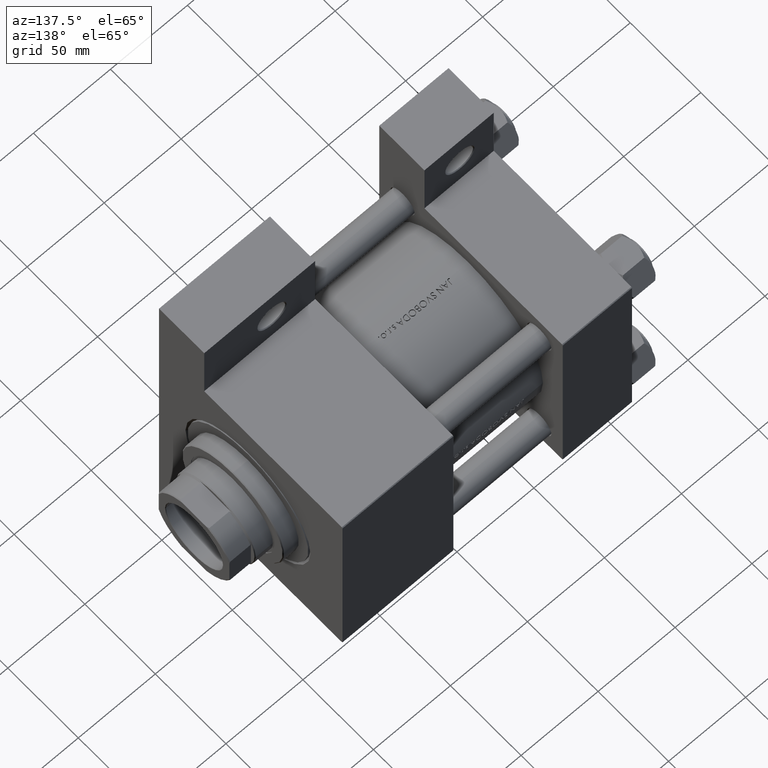
[diagram: clean part render]
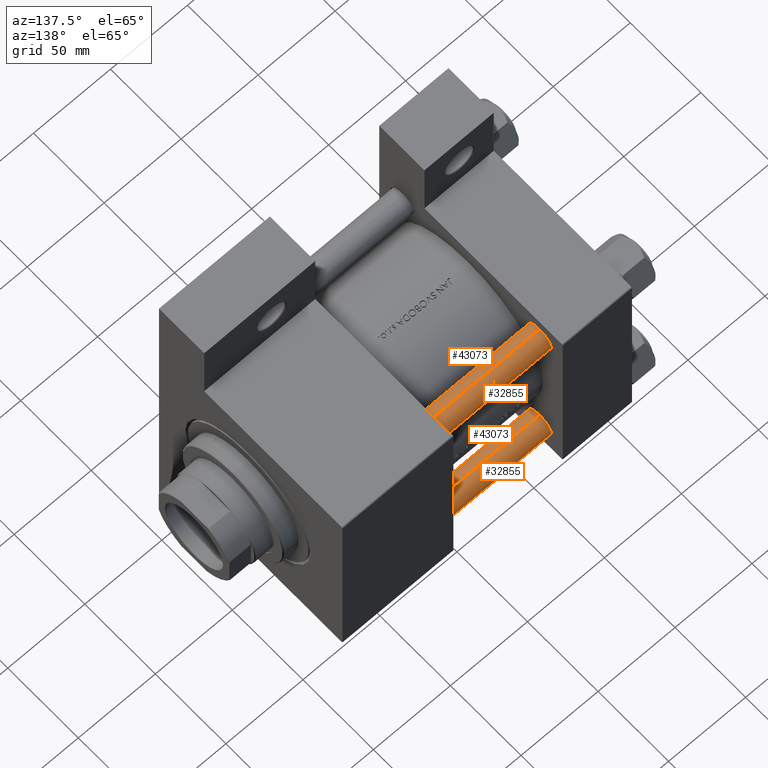
[diagram: same view with one multi-face feature highlighted, each face labeled with its STEP entity id]
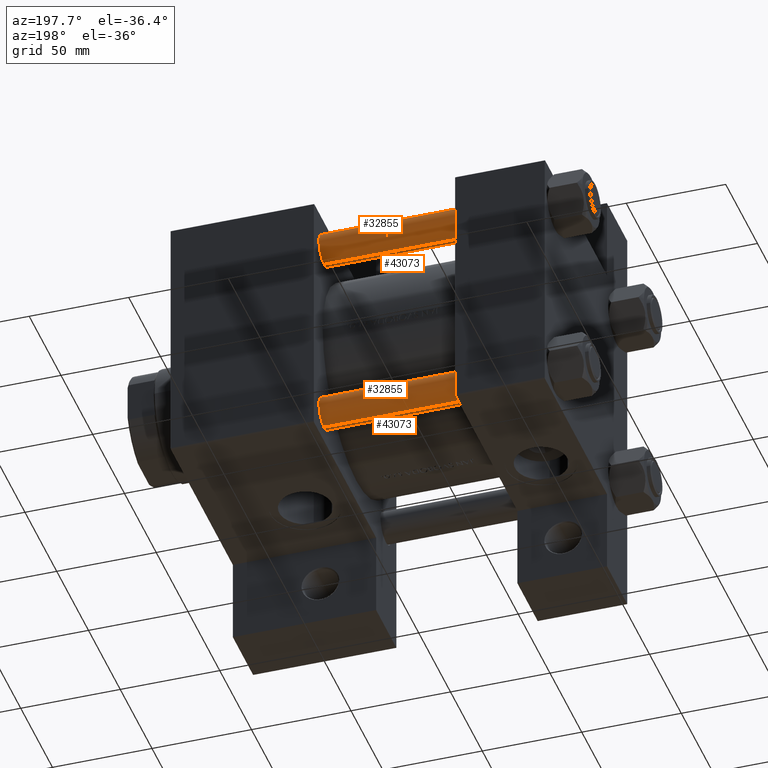
[diagram: same view with one multi-face feature highlighted, each face labeled with its STEP entity id]
A machine part, auxiliary view. The highlighted faces form ONE feature: a constant-radius fillet chain: 4 tangent blend faces with common blend radius 8 mm. The faces share edges in the B-rep.
A second angle (auxiliary view) of the same feature is appended — it is thin or edge-on in the first view.
Their STEP definitions:
[1] entity #43073 (Cylinder):
#181 = LINE ( 'NONE', #29095, #20371 ) ;
#1436 = EDGE_CURVE ( 'NONE', #11764, #44379, #43366, .T. ) ;
#3114 = CIRCLE ( 'NONE', #8542, 8.000000000000000000 ) ;
#5369 = CYLINDRICAL_SURFACE ( 'NONE', #46320, 8.000000000000000000 ) ;
#7147 = ORIENTED_EDGE ( 'NONE', *, *, #28519, .T. ) ;
#7716 = CARTESIAN_POINT ( 'NONE',  ( -8.000000000000000000, 0.000000000000000000, 149.0000000000000000 ) ) ;
#8542 = AXIS2_PLACEMENT_3D ( 'NONE', #12099, #23025, #34201 ) ;
#8592 = VERTEX_POINT ( 'NONE', #15590 ) ;
#9021 = DIRECTION ( 'NONE',  ( -1.000000000000000000, 0.000000000000000000, 0.000000000000000000 ) ) ;
#9260 = DIRECTION ( 'NONE',  ( -0.000000000000000000, -0.000000000000000000, -1.000000000000000000 ) ) ;
#11351 = DIRECTION ( 'NONE',  ( -0.000000000000000000, -0.000000000000000000, -1.000000000000000000 ) ) ;
#11764 = VERTEX_POINT ( 'NONE', #30500 ) ;
#12099 = CARTESIAN_POINT ( 'NONE',  ( 0.000000000000000000, 0.000000000000000000, 0.5000000000000281997 ) ) ;
#13413 = EDGE_CURVE ( 'NONE', #11764, #8592, #181, .T. ) ;
#15590 = CARTESIAN_POINT ( 'NONE',  ( 8.000000000000000000, 9.797174393178825657E-16, 0.5000000000000281997 ) ) ;
#16047 = CARTESIAN_POINT ( 'NONE',  ( 0.000000000000000000, 0.000000000000000000, 149.0000000000000000 ) ) ;
#18769 = EDGE_CURVE ( 'NONE', #23008, #8592, #3114, .T. ) ;
#20371 = VECTOR ( 'NONE', #21580, 1000.000000000000000 ) ;
#21580 = DIRECTION ( 'NONE',  ( -0.000000000000000000, -0.000000000000000000, -1.000000000000000000 ) ) ;
#23008 = VERTEX_POINT ( 'NONE', #23796 ) ;
#23025 = DIRECTION ( 'NONE',  ( -0.000000000000000000, -0.000000000000000000, 1.000000000000000000 ) ) ;
#23796 = CARTESIAN_POINT ( 'NONE',  ( -8.000000000000000000, 0.000000000000000000, 0.5000000000000281997 ) ) ;
#24348 = ORIENTED_EDGE ( 'NONE', *, *, #13413, .F. ) ;
#24599 = ORIENTED_EDGE ( 'NONE', *, *, #18769, .T. ) ;
#24738 = AXIS2_PLACEMENT_3D ( 'NONE', #37266, #30208, #30461 ) ;
#26748 = FACE_OUTER_BOUND ( 'NONE', #45046, .T. ) ;
#28519 = EDGE_CURVE ( 'NONE', #44379, #23008, #41486, .T. ) ;
#29095 = CARTESIAN_POINT ( 'NONE',  ( 8.000000000000000000, 9.797174393178825657E-16, 149.0000000000000000 ) ) ;
#29489 = CARTESIAN_POINT ( 'NONE',  ( -8.000000000000000000, 0.000000000000000000, 148.5000000000000000 ) ) ;
#29616 = VECTOR ( 'NONE', #11351, 1000.000000000000000 ) ;
#30208 = DIRECTION ( 'NONE',  ( 0.000000000000000000, 0.000000000000000000, -1.000000000000000000 ) ) ;
#30461 = DIRECTION ( 'NONE',  ( 1.000000000000000000, 0.000000000000000000, 0.000000000000000000 ) ) ;
#30500 = CARTESIAN_POINT ( 'NONE',  ( 8.000000000000000000, 9.797174393178825657E-16, 148.5000000000000000 ) ) ;
#34201 = DIRECTION ( 'NONE',  ( 1.000000000000000000, 0.000000000000000000, 0.000000000000000000 ) ) ;
#37266 = CARTESIAN_POINT ( 'NONE',  ( 0.000000000000000000, 0.000000000000000000, 148.5000000000000000 ) ) ;
#41065 = ORIENTED_EDGE ( 'NONE', *, *, #1436, .T. ) ;
#41486 = LINE ( 'NONE', #7716, #29616 ) ;
#43073 = ADVANCED_FACE ( 'NONE', ( #26748 ), #5369, .T. ) ;
#43366 = CIRCLE ( 'NONE', #24738, 8.000000000000000000 ) ;
#44379 = VERTEX_POINT ( 'NONE', #29489 ) ;
#45046 = EDGE_LOOP ( 'NONE', ( #24348, #41065, #7147, #24599 ) ) ;
#46320 = AXIS2_PLACEMENT_3D ( 'NONE', #16047, #9260, #9021 ) ;
[2] entity #32855 (Cylinder):
#181 = LINE ( 'NONE', #29095, #20371 ) ;
#3237 = ORIENTED_EDGE ( 'NONE', *, *, #28519, .F. ) ;
#3923 = DIRECTION ( 'NONE',  ( -0.000000000000000000, -0.000000000000000000, 1.000000000000000000 ) ) ;
#7716 = CARTESIAN_POINT ( 'NONE',  ( -8.000000000000000000, 0.000000000000000000, 149.0000000000000000 ) ) ;
#8592 = VERTEX_POINT ( 'NONE', #15590 ) ;
#9621 = DIRECTION ( 'NONE',  ( -1.000000000000000000, 0.000000000000000000, 0.000000000000000000 ) ) ;
#11079 = CIRCLE ( 'NONE', #19621, 8.000000000000000000 ) ;
#11351 = DIRECTION ( 'NONE',  ( -0.000000000000000000, -0.000000000000000000, -1.000000000000000000 ) ) ;
#11764 = VERTEX_POINT ( 'NONE', #30500 ) ;
#13413 = EDGE_CURVE ( 'NONE', #11764, #8592, #181, .T. ) ;
#15303 = ORIENTED_EDGE ( 'NONE', *, *, #13413, .T. ) ;
#15590 = CARTESIAN_POINT ( 'NONE',  ( 8.000000000000000000, 9.797174393178825657E-16, 0.5000000000000281997 ) ) ;
#19621 = AXIS2_PLACEMENT_3D ( 'NONE', #37200, #3923, #21915 ) ;
#20029 = DIRECTION ( 'NONE',  ( 1.000000000000000000, 0.000000000000000000, 0.000000000000000000 ) ) ;
#20371 = VECTOR ( 'NONE', #21580, 1000.000000000000000 ) ;
#20615 = ORIENTED_EDGE ( 'NONE', *, *, #23307, .T. ) ;
#21580 = DIRECTION ( 'NONE',  ( -0.000000000000000000, -0.000000000000000000, -1.000000000000000000 ) ) ;
#21866 = AXIS2_PLACEMENT_3D ( 'NONE', #24159, #39218, #20029 ) ;
#21915 = DIRECTION ( 'NONE',  ( 1.000000000000000000, 0.000000000000000000, 0.000000000000000000 ) ) ;
#22638 = CIRCLE ( 'NONE', #21866, 8.000000000000000000 ) ;
#23008 = VERTEX_POINT ( 'NONE', #23796 ) ;
#23307 = EDGE_CURVE ( 'NONE', #44379, #11764, #22638, .T. ) ;
#23796 = CARTESIAN_POINT ( 'NONE',  ( -8.000000000000000000, 0.000000000000000000, 0.5000000000000281997 ) ) ;
#23892 = ORIENTED_EDGE ( 'NONE', *, *, #30043, .T. ) ;
#24159 = CARTESIAN_POINT ( 'NONE',  ( 0.000000000000000000, 0.000000000000000000, 148.5000000000000000 ) ) ;
#27840 = CYLINDRICAL_SURFACE ( 'NONE', #29008, 8.000000000000000000 ) ;
#28519 = EDGE_CURVE ( 'NONE', #44379, #23008, #41486, .T. ) ;
#29008 = AXIS2_PLACEMENT_3D ( 'NONE', #43143, #42908, #9621 ) ;
#29095 = CARTESIAN_POINT ( 'NONE',  ( 8.000000000000000000, 9.797174393178825657E-16, 149.0000000000000000 ) ) ;
#29489 = CARTESIAN_POINT ( 'NONE',  ( -8.000000000000000000, 0.000000000000000000, 148.5000000000000000 ) ) ;
#29616 = VECTOR ( 'NONE', #11351, 1000.000000000000000 ) ;
#30043 = EDGE_CURVE ( 'NONE', #8592, #23008, #11079, .T. ) ;
#30500 = CARTESIAN_POINT ( 'NONE',  ( 8.000000000000000000, 9.797174393178825657E-16, 148.5000000000000000 ) ) ;
#32311 = EDGE_LOOP ( 'NONE', ( #20615, #15303, #23892, #3237 ) ) ;
#32855 = ADVANCED_FACE ( 'NONE', ( #42431 ), #27840, .T. ) ;
#37200 = CARTESIAN_POINT ( 'NONE',  ( 0.000000000000000000, 0.000000000000000000, 0.5000000000000281997 ) ) ;
#39218 = DIRECTION ( 'NONE',  ( 0.000000000000000000, 0.000000000000000000, -1.000000000000000000 ) ) ;
#41486 = LINE ( 'NONE', #7716, #29616 ) ;
#42431 = FACE_OUTER_BOUND ( 'NONE', #32311, .T. ) ;
#42908 = DIRECTION ( 'NONE',  ( -0.000000000000000000, -0.000000000000000000, -1.000000000000000000 ) ) ;
#43143 = CARTESIAN_POINT ( 'NONE',  ( 0.000000000000000000, 0.000000000000000000, 149.0000000000000000 ) ) ;
#44379 = VERTEX_POINT ( 'NONE', #29489 ) ;
[3] entity #43073 (Cylinder):
#181 = LINE ( 'NONE', #29095, #20371 ) ;
#1436 = EDGE_CURVE ( 'NONE', #11764, #44379, #43366, .T. ) ;
#3114 = CIRCLE ( 'NONE', #8542, 8.000000000000000000 ) ;
#5369 = CYLINDRICAL_SURFACE ( 'NONE', #46320, 8.000000000000000000 ) ;
#7147 = ORIENTED_EDGE ( 'NONE', *, *, #28519, .T. ) ;
#7716 = CARTESIAN_POINT ( 'NONE',  ( -8.000000000000000000, 0.000000000000000000, 149.0000000000000000 ) ) ;
#8542 = AXIS2_PLACEMENT_3D ( 'NONE', #12099, #23025, #34201 ) ;
#8592 = VERTEX_POINT ( 'NONE', #15590 ) ;
#9021 = DIRECTION ( 'NONE',  ( -1.000000000000000000, 0.000000000000000000, 0.000000000000000000 ) ) ;
#9260 = DIRECTION ( 'NONE',  ( -0.000000000000000000, -0.000000000000000000, -1.000000000000000000 ) ) ;
#11351 = DIRECTION ( 'NONE',  ( -0.000000000000000000, -0.000000000000000000, -1.000000000000000000 ) ) ;
#11764 = VERTEX_POINT ( 'NONE', #30500 ) ;
#12099 = CARTESIAN_POINT ( 'NONE',  ( 0.000000000000000000, 0.000000000000000000, 0.5000000000000281997 ) ) ;
#13413 = EDGE_CURVE ( 'NONE', #11764, #8592, #181, .T. ) ;
#15590 = CARTESIAN_POINT ( 'NONE',  ( 8.000000000000000000, 9.797174393178825657E-16, 0.5000000000000281997 ) ) ;
#16047 = CARTESIAN_POINT ( 'NONE',  ( 0.000000000000000000, 0.000000000000000000, 149.0000000000000000 ) ) ;
#18769 = EDGE_CURVE ( 'NONE', #23008, #8592, #3114, .T. ) ;
#20371 = VECTOR ( 'NONE', #21580, 1000.000000000000000 ) ;
#21580 = DIRECTION ( 'NONE',  ( -0.000000000000000000, -0.000000000000000000, -1.000000000000000000 ) ) ;
#23008 = VERTEX_POINT ( 'NONE', #23796 ) ;
#23025 = DIRECTION ( 'NONE',  ( -0.000000000000000000, -0.000000000000000000, 1.000000000000000000 ) ) ;
#23796 = CARTESIAN_POINT ( 'NONE',  ( -8.000000000000000000, 0.000000000000000000, 0.5000000000000281997 ) ) ;
#24348 = ORIENTED_EDGE ( 'NONE', *, *, #13413, .F. ) ;
#24599 = ORIENTED_EDGE ( 'NONE', *, *, #18769, .T. ) ;
#24738 = AXIS2_PLACEMENT_3D ( 'NONE', #37266, #30208, #30461 ) ;
#26748 = FACE_OUTER_BOUND ( 'NONE', #45046, .T. ) ;
#28519 = EDGE_CURVE ( 'NONE', #44379, #23008, #41486, .T. ) ;
#29095 = CARTESIAN_POINT ( 'NONE',  ( 8.000000000000000000, 9.797174393178825657E-16, 149.0000000000000000 ) ) ;
#29489 = CARTESIAN_POINT ( 'NONE',  ( -8.000000000000000000, 0.000000000000000000, 148.5000000000000000 ) ) ;
#29616 = VECTOR ( 'NONE', #11351, 1000.000000000000000 ) ;
#30208 = DIRECTION ( 'NONE',  ( 0.000000000000000000, 0.000000000000000000, -1.000000000000000000 ) ) ;
#30461 = DIRECTION ( 'NONE',  ( 1.000000000000000000, 0.000000000000000000, 0.000000000000000000 ) ) ;
#30500 = CARTESIAN_POINT ( 'NONE',  ( 8.000000000000000000, 9.797174393178825657E-16, 148.5000000000000000 ) ) ;
#34201 = DIRECTION ( 'NONE',  ( 1.000000000000000000, 0.000000000000000000, 0.000000000000000000 ) ) ;
#37266 = CARTESIAN_POINT ( 'NONE',  ( 0.000000000000000000, 0.000000000000000000, 148.5000000000000000 ) ) ;
#41065 = ORIENTED_EDGE ( 'NONE', *, *, #1436, .T. ) ;
#41486 = LINE ( 'NONE', #7716, #29616 ) ;
#43073 = ADVANCED_FACE ( 'NONE', ( #26748 ), #5369, .T. ) ;
#43366 = CIRCLE ( 'NONE', #24738, 8.000000000000000000 ) ;
#44379 = VERTEX_POINT ( 'NONE', #29489 ) ;
#45046 = EDGE_LOOP ( 'NONE', ( #24348, #41065, #7147, #24599 ) ) ;
#46320 = AXIS2_PLACEMENT_3D ( 'NONE', #16047, #9260, #9021 ) ;
[4] entity #32855 (Cylinder):
#181 = LINE ( 'NONE', #29095, #20371 ) ;
#3237 = ORIENTED_EDGE ( 'NONE', *, *, #28519, .F. ) ;
#3923 = DIRECTION ( 'NONE',  ( -0.000000000000000000, -0.000000000000000000, 1.000000000000000000 ) ) ;
#7716 = CARTESIAN_POINT ( 'NONE',  ( -8.000000000000000000, 0.000000000000000000, 149.0000000000000000 ) ) ;
#8592 = VERTEX_POINT ( 'NONE', #15590 ) ;
#9621 = DIRECTION ( 'NONE',  ( -1.000000000000000000, 0.000000000000000000, 0.000000000000000000 ) ) ;
#11079 = CIRCLE ( 'NONE', #19621, 8.000000000000000000 ) ;
#11351 = DIRECTION ( 'NONE',  ( -0.000000000000000000, -0.000000000000000000, -1.000000000000000000 ) ) ;
#11764 = VERTEX_POINT ( 'NONE', #30500 ) ;
#13413 = EDGE_CURVE ( 'NONE', #11764, #8592, #181, .T. ) ;
#15303 = ORIENTED_EDGE ( 'NONE', *, *, #13413, .T. ) ;
#15590 = CARTESIAN_POINT ( 'NONE',  ( 8.000000000000000000, 9.797174393178825657E-16, 0.5000000000000281997 ) ) ;
#19621 = AXIS2_PLACEMENT_3D ( 'NONE', #37200, #3923, #21915 ) ;
#20029 = DIRECTION ( 'NONE',  ( 1.000000000000000000, 0.000000000000000000, 0.000000000000000000 ) ) ;
#20371 = VECTOR ( 'NONE', #21580, 1000.000000000000000 ) ;
#20615 = ORIENTED_EDGE ( 'NONE', *, *, #23307, .T. ) ;
#21580 = DIRECTION ( 'NONE',  ( -0.000000000000000000, -0.000000000000000000, -1.000000000000000000 ) ) ;
#21866 = AXIS2_PLACEMENT_3D ( 'NONE', #24159, #39218, #20029 ) ;
#21915 = DIRECTION ( 'NONE',  ( 1.000000000000000000, 0.000000000000000000, 0.000000000000000000 ) ) ;
#22638 = CIRCLE ( 'NONE', #21866, 8.000000000000000000 ) ;
#23008 = VERTEX_POINT ( 'NONE', #23796 ) ;
#23307 = EDGE_CURVE ( 'NONE', #44379, #11764, #22638, .T. ) ;
#23796 = CARTESIAN_POINT ( 'NONE',  ( -8.000000000000000000, 0.000000000000000000, 0.5000000000000281997 ) ) ;
#23892 = ORIENTED_EDGE ( 'NONE', *, *, #30043, .T. ) ;
#24159 = CARTESIAN_POINT ( 'NONE',  ( 0.000000000000000000, 0.000000000000000000, 148.5000000000000000 ) ) ;
#27840 = CYLINDRICAL_SURFACE ( 'NONE', #29008, 8.000000000000000000 ) ;
#28519 = EDGE_CURVE ( 'NONE', #44379, #23008, #41486, .T. ) ;
#29008 = AXIS2_PLACEMENT_3D ( 'NONE', #43143, #42908, #9621 ) ;
#29095 = CARTESIAN_POINT ( 'NONE',  ( 8.000000000000000000, 9.797174393178825657E-16, 149.0000000000000000 ) ) ;
#29489 = CARTESIAN_POINT ( 'NONE',  ( -8.000000000000000000, 0.000000000000000000, 148.5000000000000000 ) ) ;
#29616 = VECTOR ( 'NONE', #11351, 1000.000000000000000 ) ;
#30043 = EDGE_CURVE ( 'NONE', #8592, #23008, #11079, .T. ) ;
#30500 = CARTESIAN_POINT ( 'NONE',  ( 8.000000000000000000, 9.797174393178825657E-16, 148.5000000000000000 ) ) ;
#32311 = EDGE_LOOP ( 'NONE', ( #20615, #15303, #23892, #3237 ) ) ;
#32855 = ADVANCED_FACE ( 'NONE', ( #42431 ), #27840, .T. ) ;
#37200 = CARTESIAN_POINT ( 'NONE',  ( 0.000000000000000000, 0.000000000000000000, 0.5000000000000281997 ) ) ;
#39218 = DIRECTION ( 'NONE',  ( 0.000000000000000000, 0.000000000000000000, -1.000000000000000000 ) ) ;
#41486 = LINE ( 'NONE', #7716, #29616 ) ;
#42431 = FACE_OUTER_BOUND ( 'NONE', #32311, .T. ) ;
#42908 = DIRECTION ( 'NONE',  ( -0.000000000000000000, -0.000000000000000000, -1.000000000000000000 ) ) ;
#43143 = CARTESIAN_POINT ( 'NONE',  ( 0.000000000000000000, 0.000000000000000000, 149.0000000000000000 ) ) ;
#44379 = VERTEX_POINT ( 'NONE', #29489 ) ;